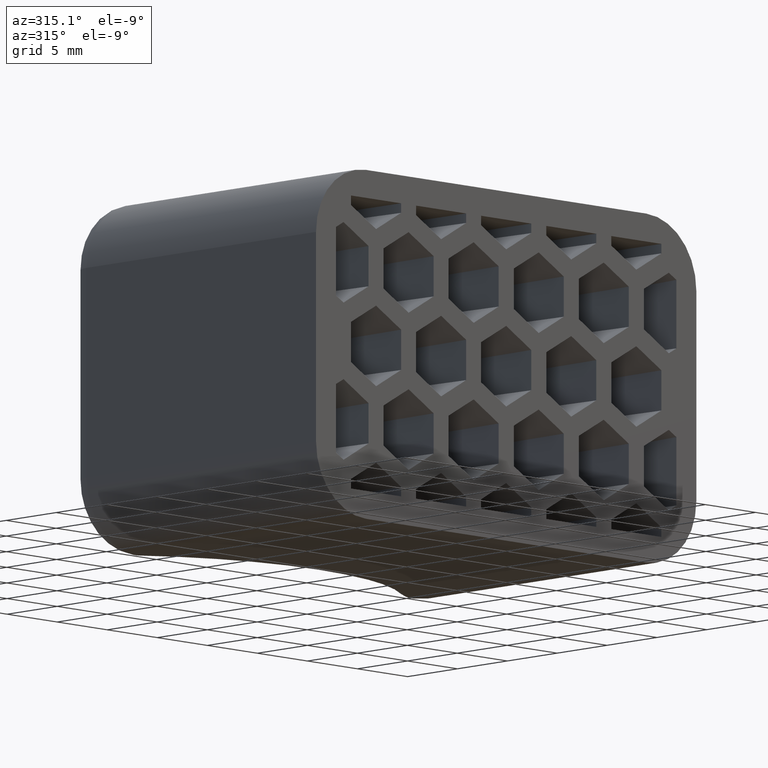
[diagram: clean part render]
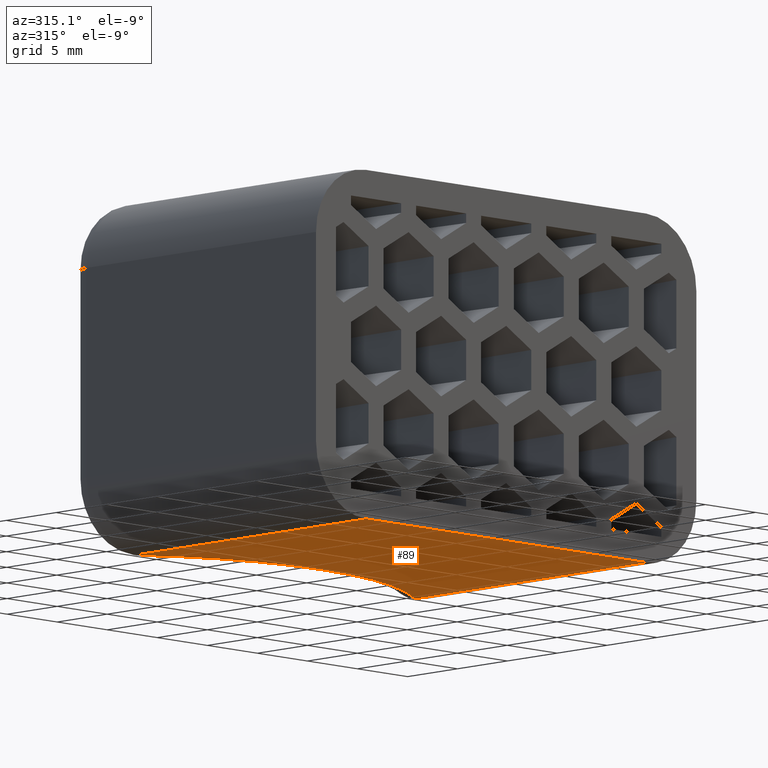
[diagram: same view with one face highlighted and labeled with its STEP entity id]
A machine part, auxiliary view. The second image highlights one B-rep face of the part: STEP entity #89.
In plain terms, the highlighted planar face has unit normal (0, 0, -1).
Its self-contained STEP definition (entity closure, byte-faithful):
#89 = ADVANCED_FACE( '', ( #388 ), #389, .T. );
#388 = FACE_OUTER_BOUND( '', #924, .T. );
#389 = PLANE( '', #925 );
#924 = EDGE_LOOP( '', ( #1688, #1689, #1690, #1691, #1692, #1693 ) );
#925 = AXIS2_PLACEMENT_3D( '', #1694, #1695, #1696 );
#1688 = ORIENTED_EDGE( '', *, *, #3643, .T. );
#1689 = ORIENTED_EDGE( '', *, *, #3641, .T. );
#1690 = ORIENTED_EDGE( '', *, *, #3644, .T. );
#1691 = ORIENTED_EDGE( '', *, *, #3645, .T. );
#1692 = ORIENTED_EDGE( '', *, *, #3646, .T. );
#1693 = ORIENTED_EDGE( '', *, *, #3576, .F. );
#1694 = CARTESIAN_POINT( '', ( 0.000000000000000, 41.6000000000000, -12.5000000000000 ) );
#1695 = DIRECTION( '', ( 0.000000000000000, 0.000000000000000, -1.00000000000000 ) );
#1696 = DIRECTION( '', ( 0.000000000000000, 1.00000000000000, 0.000000000000000 ) );
#3576 = EDGE_CURVE( '', #4362, #4363, #4364, .T. );
#3641 = EDGE_CURVE( '', #4476, #4481, #4483, .F. );
#3643 = EDGE_CURVE( '', #4362, #4476, #4485, .F. );
#3644 = EDGE_CURVE( '', #4481, #4486, #4487, .F. );
#3645 = EDGE_CURVE( '', #4486, #4488, #4489, .F. );
#3646 = EDGE_CURVE( '', #4488, #4363, #4490, .F. );
#4362 = VERTEX_POINT( '', #5564 );
#4363 = VERTEX_POINT( '', #5565 );
#4364 = LINE( '', #5566, #5567 );
#4476 = VERTEX_POINT( '', #5728 );
#4481 = VERTEX_POINT( '', #5733 );
#4483 = LINE( '', #5735, #5736 );
#4485 = LINE( '', #5739, #5740 );
#4486 = VERTEX_POINT( '', #5741 );
#4487 = CIRCLE( '', #5742, 23.1000000000000 );
#4488 = VERTEX_POINT( '', #5743 );
#4489 = LINE( '', #5744, #5745 );
#4490 = LINE( '', #5746, #5747 );
#5564 = CARTESIAN_POINT( '', ( -14.0000000000000, -6.93889390390723E-015, -12.5000000000000 ) );
#5565 = CARTESIAN_POINT( '', ( 14.0000000000000, -6.93889390390723E-015, -12.5000000000000 ) );
#5566 = CARTESIAN_POINT( '', ( -43.0000000000000, -6.93889390390723E-015, -12.5000000000000 ) );
#5567 = VECTOR( '', #6814, 1000.00000000000 );
#5728 = CARTESIAN_POINT( '', ( -14.0000000000000, 23.0000000000000, -12.5000000000000 ) );
#5733 = CARTESIAN_POINT( '', ( -13.6985400681971, 23.0000000000000, -12.5000000000000 ) );
#5735 = CARTESIAN_POINT( '', ( 0.000000000000000, 23.0000000000000, -12.5000000000000 ) );
#5736 = VECTOR( '', #6909, 1000.00000000000 );
#5739 = CARTESIAN_POINT( '', ( -14.0000000000000, 41.6000000000000, -12.5000000000000 ) );
#5740 = VECTOR( '', #6911, 1000.00000000000 );
#5741 = CARTESIAN_POINT( '', ( 13.6985400681971, 23.0000000000000, -12.5000000000000 ) );
#5742 = AXIS2_PLACEMENT_3D( '', #6912, #6913, #6914 );
#5743 = CARTESIAN_POINT( '', ( 14.0000000000000, 23.0000000000000, -12.5000000000000 ) );
#5744 = CARTESIAN_POINT( '', ( 0.000000000000000, 23.0000000000000, -12.5000000000000 ) );
#5745 = VECTOR( '', #6915, 1000.00000000000 );
#5746 = CARTESIAN_POINT( '', ( 14.0000000000000, 41.6000000000000, -12.5000000000000 ) );
#5747 = VECTOR( '', #6916, 1000.00000000000 );
#6814 = DIRECTION( '', ( 1.00000000000000, 0.000000000000000, 0.000000000000000 ) );
#6909 = DIRECTION( '', ( -1.00000000000000, 0.000000000000000, 0.000000000000000 ) );
#6911 = DIRECTION( '', ( -6.93889390390723E-017, -1.00000000000000, 0.000000000000000 ) );
#6912 = CARTESIAN_POINT( '', ( 0.000000000000000, 41.6000000000000, -12.5000000000000 ) );
#6913 = DIRECTION( '', ( 0.000000000000000, 0.000000000000000, -1.00000000000000 ) );
#6914 = DIRECTION( '', ( -1.00000000000000, 0.000000000000000, 0.000000000000000 ) );
#6915 = DIRECTION( '', ( -1.00000000000000, 0.000000000000000, 0.000000000000000 ) );
#6916 = DIRECTION( '', ( 6.93889390390723E-017, 1.00000000000000, 0.000000000000000 ) );